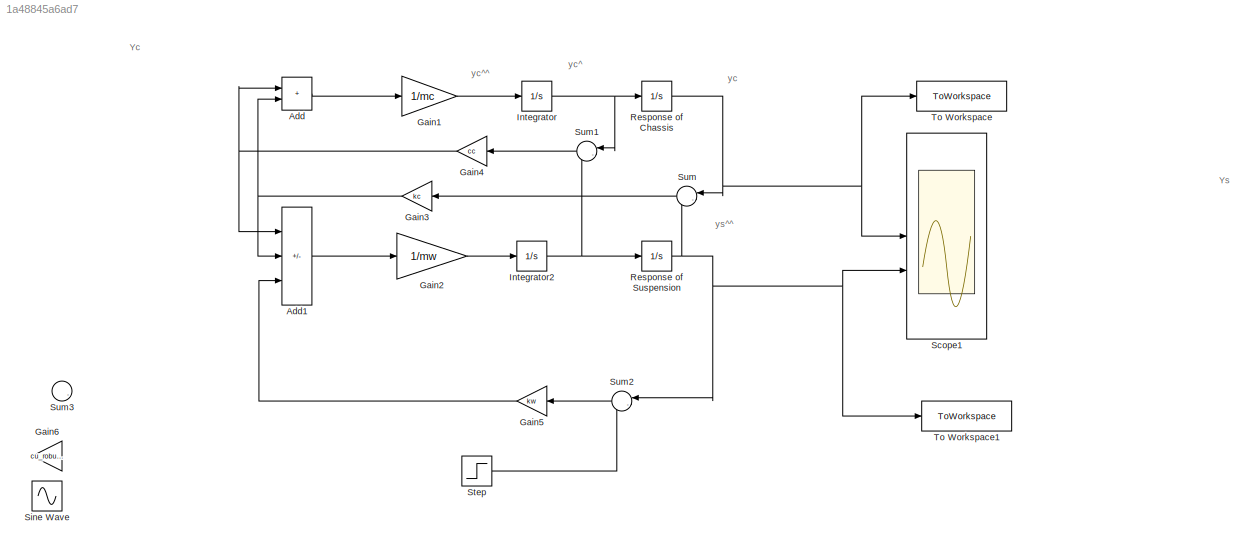
MODEL slx_1a48845a6ad7
KIND model
CONFIG AbsTol = auto
CONFIG EnableMultiTasking = off
CONFIG FixedStep = auto
CONFIG MaxStep = 1e-4
CONFIG MinStep = auto
CONFIG RelTol = 1e-3
CONFIG SampleTimeConstraint = Unconstrained
CONFIG SolverName = VariableStepAuto
CONFIG StartTime = 0.0
CONFIG StopTime = 100.0
BLOCK [Sum] Add
  IconShape = rectangular
BLOCK [Sum] Add1
  IconShape = rectangular
  Inputs = --+
BLOCK [Gain] Gain1
  Gain = 1/mc
BLOCK [Gain] Gain2
  Gain = 1/mw
BLOCK [Gain] Gain3
  Gain = kc
  NameLocation = top
BLOCK [Gain] Gain4
  Gain = cc
  NameLocation = top
BLOCK [Gain] Gain5
  Gain = kw
  NameLocation = top
BLOCK [Gain] Gain6
  Gain = cu_robust
  NameLocation = top
BLOCK [Integrator] Integrator
BLOCK [Integrator] Integrator2
BLOCK [Integrator] Response of Chassis
BLOCK [Integrator] Response of Suspension
BLOCK [Scope] Scope1
  Floating = off
  NumInputPorts = 2
  ScopeSpecificationString = Simulink.scopes.TimeScopeBlockCfg('CurrentConfiguration', extmgr.ConfigurationSet(extmgr.Configuration('Core','General UI',true),extmgr.Configuration('Core','Source UI',true),extmgr.Configuration('Sources','WiredSimulink',true,'DataLoggingVariableName','ScopeData1'),extmgr.Configuration('Visuals','Time Domain',true,'SerializedDisplays',{struct('MinYLimReal','-3.40029','MaxYLimReal','30.60257','YLa...<+3968ch>
BLOCK [Sin] Sine Wave
  Amplitude = 30
  Frequency = 5
  SampleTime = 0
BLOCK [Step] Step
  After = 20
  SampleTime = 0
BLOCK [Sum] Sum
  Inputs = |-+
  NameLocation = top
BLOCK [Sum] Sum1
  Inputs = |-+
  NameLocation = top
BLOCK [Sum] Sum2
  Inputs = |-+
  NameLocation = top
BLOCK [Sum] Sum3
  Inputs = |-+
  NameLocation = top
BLOCK [ToWorkspace] To Workspace
  FixptAsFi = on
  MaxDataPoints = inf
  SampleTime = -1
  SaveFormat = Timeseries
  VariableName = Cc_10
BLOCK [ToWorkspace] To Workspace1
  FixptAsFi = on
  MaxDataPoints = inf
  SampleTime = -1
  SaveFormat = Timeseries
  VariableName = Cs_10
ANNOTATION (root): Yc
ANNOTATION (root): Ys
ANNOTATION (root): yc
ANNOTATION (root): yc^
ANNOTATION (root): yc^^
ANNOTATION (root): ys^^
LINE Add1:1 -> Gain2:1
LINE Add:1 -> Gain1:1
LINE Gain1:1 -> Integrator:1
LINE Gain2:1 -> Integrator2:1
NET Gain3:1 -> Add1:2, Add:2
NET Gain4:1 -> Add1:1, Add:1
LINE Gain5:1 -> Add1:3
NET Integrator2:1 -> Response of Suspension:1, Sum1:2
NET Integrator:1 -> Response of Chassis:1, Sum1:1
NET Response of Chassis:1 -> Scope1:1, Sum:1, To Workspace:1
NET Response of Suspension:1 -> Scope1:2, Sum2:1, Sum:2, To Workspace1:1
LINE Step:1 -> Sum2:2
LINE Sum1:1 -> Gain4:1
LINE Sum2:1 -> Gain5:1
LINE Sum:1 -> Gain3:1
note: NET lines group one-source signal fan-out (src -> all destinations, sorted); 1:1 wires keep LINE
